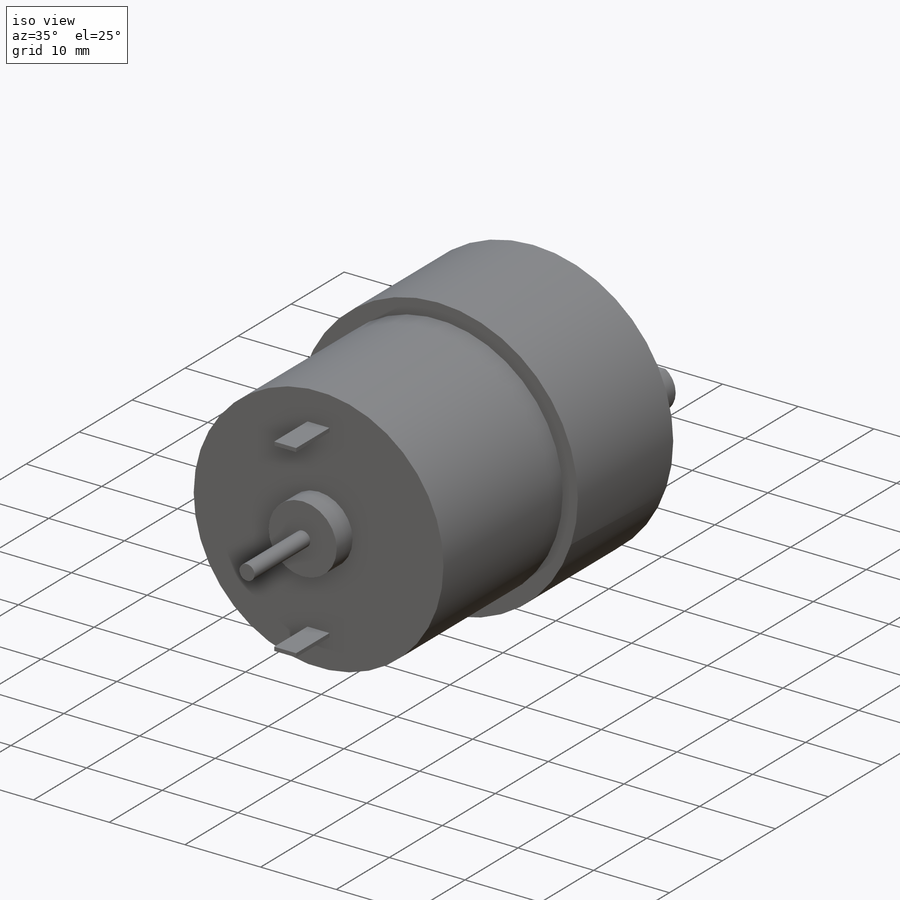
[diagram: iso view]
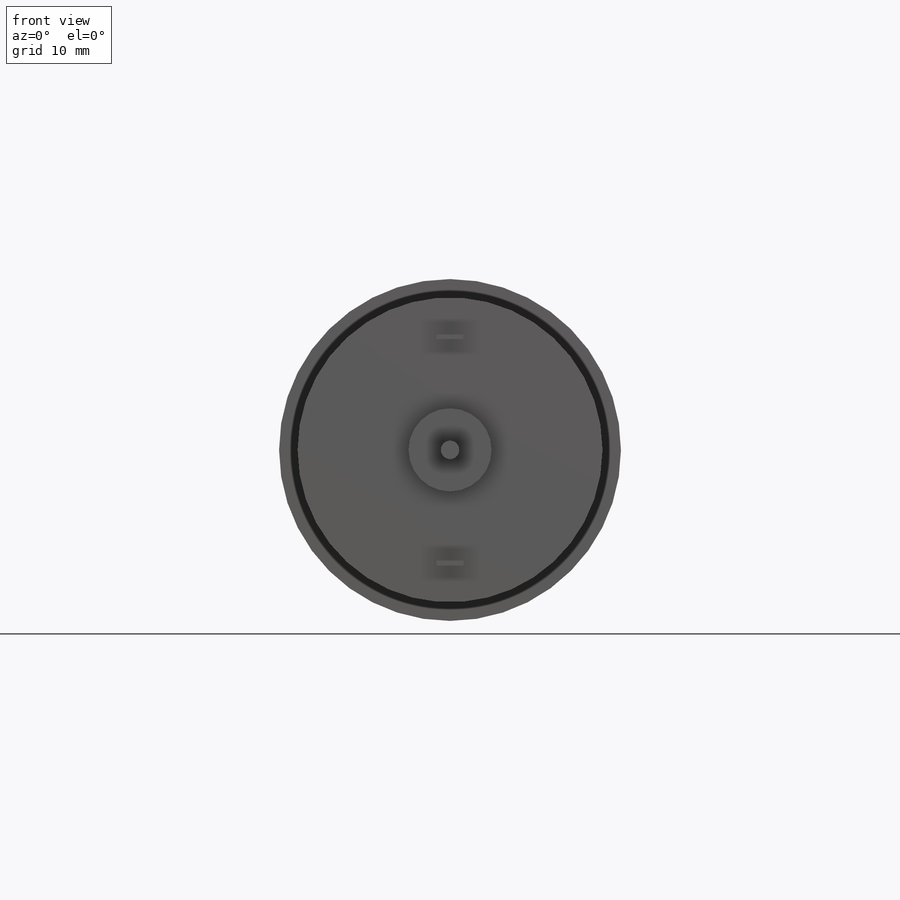
[diagram: front view]
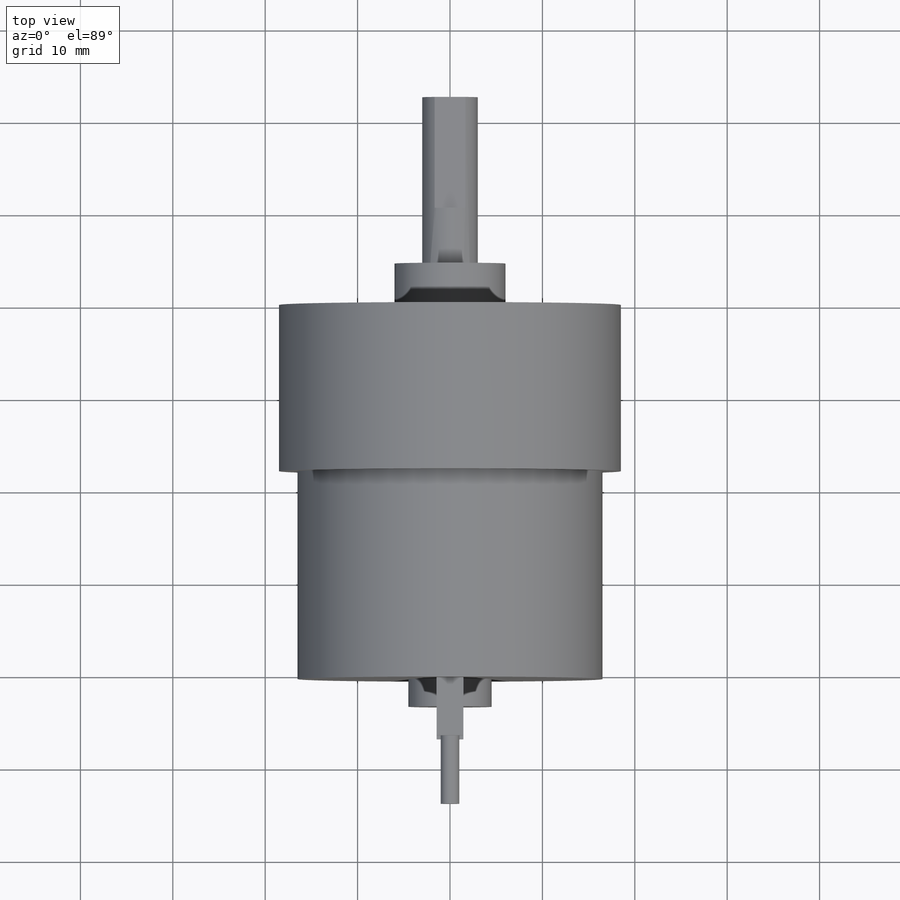
[diagram: top view]
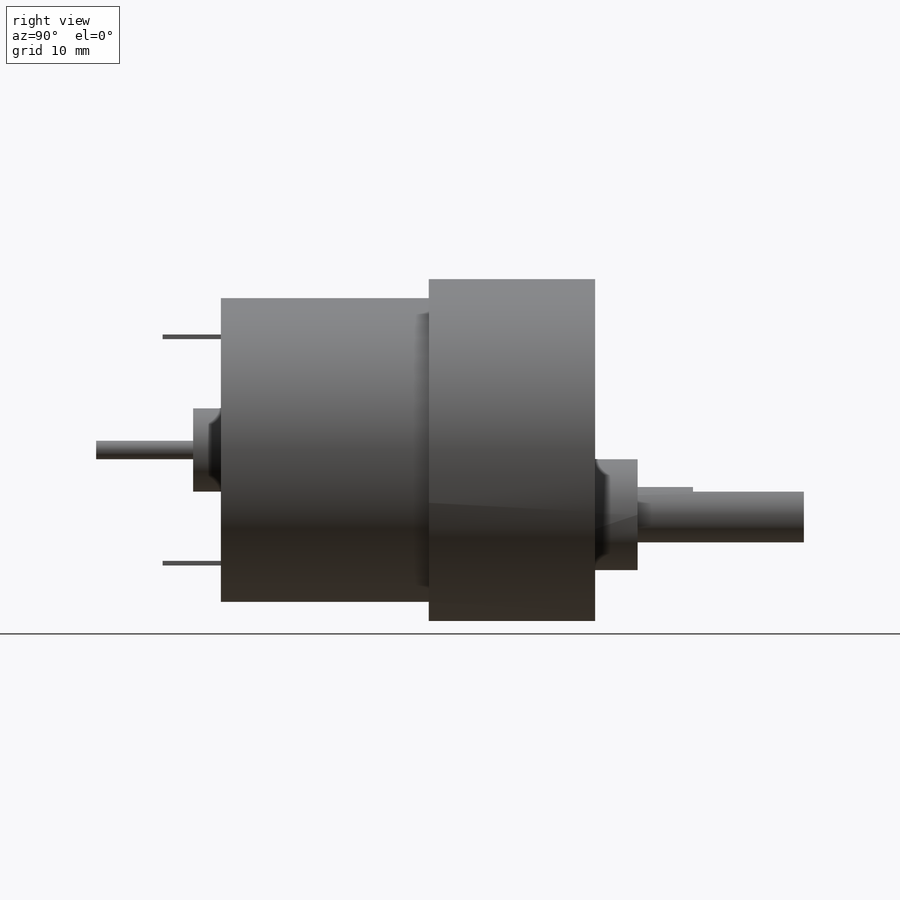
[diagram: right view]
SOLIDWORKS PART (.sldprt)
format: sldprt  version: not decoded by parser v0  size: 241,664 bytes
history: native  units: mm
features: sketch x9, extrude x8, plane x3, material x1, cut_extrude x1 (+13 scaffold rows collapsed)
feature tree (35):
  scaffold x13  (default folders/planes/origin — collapsed)
  material  "Material <sin especificar>"
  plane  "Alzado"
  plane  "Planta"
  plane  "Vista lateral"
  sketch  "Croquis1"  dims[D1=37.0mm]
  extrude  "Saliente-Extruir1"  Depth=18mm
  sketch  "Croquis2"  dims[D1=33.0mm]
  extrude  "Saliente-Extruir2"  Depth=22.5mm
  sketch  "Croquis3"  dims[D1=9.0mm]
  extrude  "Saliente-Extruir3"  Depth=3mm
  sketch  "Croquis4"  dims[D1=2.0mm]
  extrude  "Saliente-Extruir4"  Depth=10.5mm
  sketch  "Croquis5"  dims[D1=0.5mm D2=2.9mm D3=25.0mm]
  extrude  "Saliente-Extruir5"  Depth=6.3mm
  sketch  "Croquis6"  dims[D2=12.0mm D1=7.0mm]
  extrude  "Saliente-Extruir6"  Depth=4.6mm
  sketch  "Croquis7"  dims[D1=6.0mm]
  extrude  "Saliente-Extruir7"  Depth=6mm
  sketch  "Croquis8"  dims[D1=5.5mm]
  extrude  "Saliente-Extruir8"  Depth=12mm
  sketch  "Croquis9"  dims[c1.D3=31.0mm c1.D4=3.0mm c1.D1=~12.924542mm c2.D1=120.0deg c2.D2=~9.576683mm c3.D2=120.0deg]
  cut_extrude  "Cortar-Extruir1"  Depth=5mm
decode coverage: 18 of 18 modeling features carry decoded parameters
note: ~ marks probable driven/reference dimensions
note: suppression state not decoded; provenance and decode notes live in map.json
